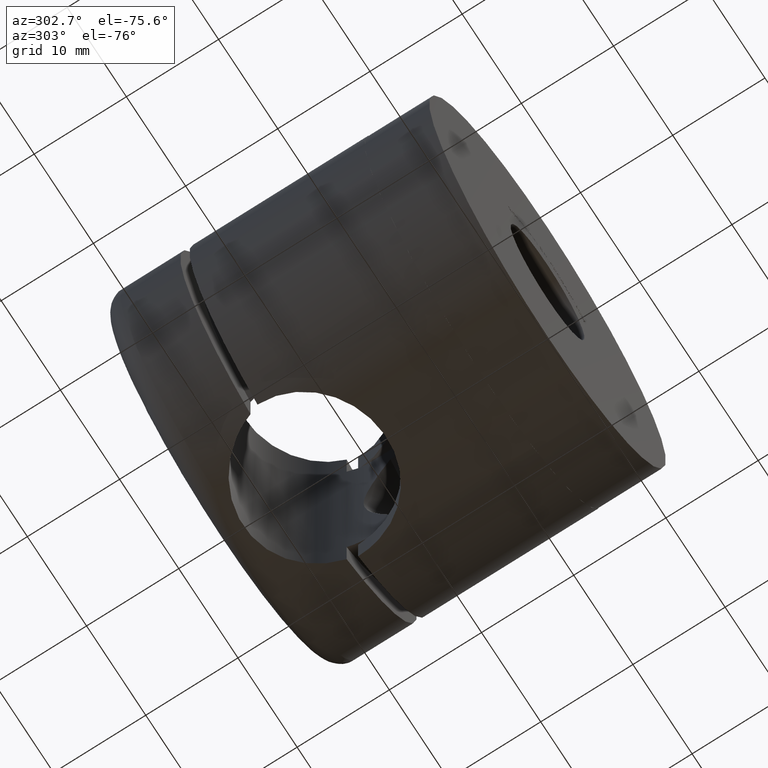
[diagram: clean part render]
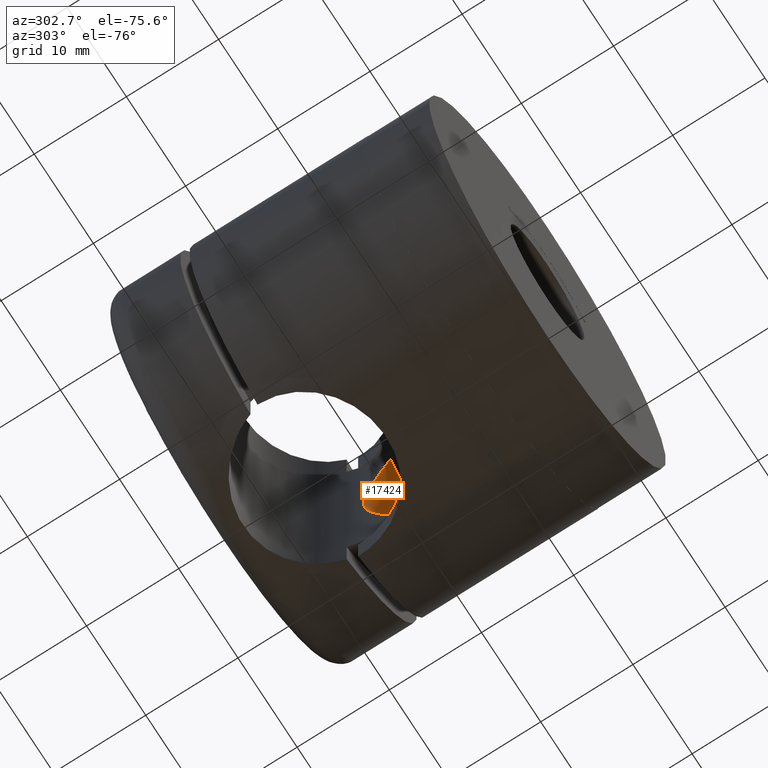
[diagram: same view with one face highlighted and labeled with its STEP entity id]
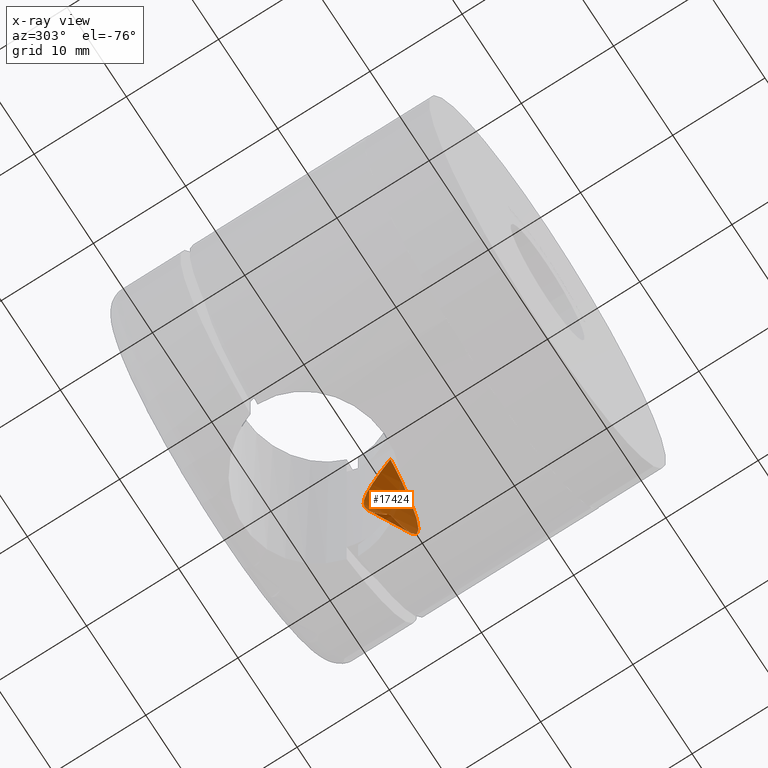
[diagram: x-ray of the same camera — body ghosted, the highlighted face saturated]
A machine part, auxiliary view. The second image highlights one B-rep face of the part: STEP entity #17424.
The next image is the same camera in x-ray: the body ghosted, the highlighted face saturated — about 40% of this face is hidden behind the body in this view.
In plain terms, the highlighted conical surface has half-angle 59 deg.
Its self-contained STEP definition (entity closure, byte-faithful):
#16 = CARTESIAN_POINT ( 'NONE',  ( 8.470316689241405700, 11.78591340343989600, -2.164372044070071800 ) ) ;
#83 = CARTESIAN_POINT ( 'NONE',  ( 8.488097470096475300, 12.02374899075188400, 3.455200897142647800 ) ) ;
#101 = CARTESIAN_POINT ( 'NONE',  ( 8.499999999999996400, 14.12247907873310600, -9.345232631488455500 ) ) ;
#277 = CARTESIAN_POINT ( 'NONE',  ( 8.499999999999994700, 13.75807566147998500, 8.514920876191522900 ) ) ;
#1086 = CARTESIAN_POINT ( 'NONE',  ( 8.464588809901300700, 11.72377538009827800, -1.733538298322939700 ) ) ;
#1113 = CONICAL_SURFACE ( 'NONE', #2738, 13.24999999999999600, 1.029744258676654100 ) ;
#1171 = EDGE_CURVE ( 'NONE', #7612, #2214, #10697, .T. ) ;
#1174 = CARTESIAN_POINT ( 'NONE',  ( 8.500000000000000000, 12.50000000000000400, 5.117127340306695700 ) ) ;
#1459 = CARTESIAN_POINT ( 'NONE',  ( 8.499999999999996400, 14.49999999999999800, 10.16427567512805800 ) ) ;
#1510 = CARTESIAN_POINT ( 'NONE',  ( 8.499999999999996400, 14.49999999999999800, -10.16427567512805800 ) ) ;
#1624 = ORIENTED_EDGE ( 'NONE', *, *, #1171, .F. ) ;
#2214 = VERTEX_POINT ( 'NONE', #3611 ) ;
#2667 = DIRECTION ( 'NONE',  ( 0.0000000000000000000, 0.0000000000000000000, 1.000000000000000000 ) ) ;
#2738 = AXIS2_PLACEMENT_3D ( 'NONE', #5350, #5181, #2667 ) ;
#2928 = CARTESIAN_POINT ( 'NONE',  ( 8.499999999999998200, 12.63448393242021700, -5.551082833214704400 ) ) ;
#2997 = CARTESIAN_POINT ( 'NONE',  ( 8.499999999999996400, 14.12144555125298400, 9.342990362397342700 ) ) ;
#3611 = CARTESIAN_POINT ( 'NONE',  ( 8.499999999999996400, 12.50000000000000000, -5.117127340306695700 ) ) ;
#3904 = EDGE_CURVE ( 'NONE', #2214, #14559, #12081, .T. ) ;
#3988 = CARTESIAN_POINT ( 'NONE',  ( 8.499999999999996400, 14.49999999999999800, 10.16427567512805800 ) ) ;
#4229 = CARTESIAN_POINT ( 'NONE',  ( 8.499999999999996400, 14.49999999999999800, -10.16427567512805800 ) ) ;
#4699 = FACE_OUTER_BOUND ( 'NONE', #16057, .T. ) ;
#5050 = AXIS2_PLACEMENT_3D ( 'NONE', #11974, #11570, #14665 ) ;
#5181 = DIRECTION ( 'NONE',  ( -0.0000000000000000000, 1.000000000000000000, -0.0000000000000000000 ) ) ;
#5350 = CARTESIAN_POINT ( 'NONE',  ( 0.0000000000000000000, 14.49999999999999800, 0.0000000000000000000 ) ) ;
#5722 = CARTESIAN_POINT ( 'NONE',  ( 8.499999999999996400, 12.78099535642304800, -5.983270184835440400 ) ) ;
#6764 = CARTESIAN_POINT ( 'NONE',  ( 8.487960100870724400, 12.02117721468206600, -3.445824744452385100 ) ) ;
#7198 = CARTESIAN_POINT ( 'NONE',  ( 8.454293803640945600, 11.61970569788817400, 0.8991242399111343300 ) ) ;
#7612 = VERTEX_POINT ( 'NONE', #1174 ) ;
#8150 = CARTESIAN_POINT ( 'NONE',  ( 8.500000000000000000, 12.24230391735391900, -4.285588370909843900 ) ) ;
#8271 = CARTESIAN_POINT ( 'NONE',  ( 8.464741415981043500, 11.71084447271580900, 1.760025772629055600 ) ) ;
#8358 = CARTESIAN_POINT ( 'NONE',  ( 8.499999999999998200, 13.25104646038842800, 7.255827513706979200 ) ) ;
#8572 = CARTESIAN_POINT ( 'NONE',  ( 8.454086431650425800, 11.61771713700351300, -0.4197338985671649800 ) ) ;
#9146 = CARTESIAN_POINT ( 'NONE',  ( 8.456446213060999600, 11.63958973340953100, -0.8627924087449113700 ) ) ;
#9264 = EDGE_CURVE ( 'NONE', #14988, #14559, #13873, .T. ) ;
#9612 = CARTESIAN_POINT ( 'NONE',  ( 8.499999999999996400, 12.50000000000000000, -5.117127340306695700 ) ) ;
#9707 = CARTESIAN_POINT ( 'NONE',  ( 8.499999999999998200, 12.78008696980463000, 5.980618887440311200 ) ) ;
#9738 = EDGE_CURVE ( 'NONE', #14988, #7612, #10896, .T. ) ;
#9755 = CARTESIAN_POINT ( 'NONE',  ( 8.499999999999994700, 13.25266821709258000, -7.259975275631322100 ) ) ;
#10697 = B_SPLINE_CURVE_WITH_KNOTS ( 'NONE', 3,
 ( #13496, #16172, #83, #8271, #7198, #8572, #9146, #1086, #16, #6764, #8150, #9612 ),
 .UNSPECIFIED., .F., .F.,
 ( 4, 2, 2, 2, 2, 4 ),
 ( 0.001838161783039397300, 0.004423539086428568900, 0.007008916389817741000, 0.008301605041512326700, 0.009594293693206912300, 0.01217967099659608400 ),
 .UNSPECIFIED. ) ;
#10887 = CARTESIAN_POINT ( 'NONE',  ( 8.499999999999994700, 13.08993967665498400, -6.837207692067382300 ) ) ;
#10896 = B_SPLINE_CURVE_WITH_KNOTS ( 'NONE', 3,
 ( #1459, #2997, #277, #8358, #15050, #9707, #12406, #16367 ),
 .UNSPECIFIED., .F., .F.,
 ( 4, 2, 2, 4 ),
 ( 0.02165056341035569200, 0.02436636304985750900, 0.02572426286960842100, 0.02708216268935933000 ),
 .UNSPECIFIED. ) ;
#11570 = DIRECTION ( 'NONE',  ( -0.0000000000000000000, 1.000000000000000000, -0.0000000000000000000 ) ) ;
#11781 = ORIENTED_EDGE ( 'NONE', *, *, #9264, .T. ) ;
#11974 = CARTESIAN_POINT ( 'NONE',  ( 0.0000000000000000000, 14.49999999999999800, 0.0000000000000000000 ) ) ;
#12081 = B_SPLINE_CURVE_WITH_KNOTS ( 'NONE', 3,
 ( #16413, #2928, #5722, #10887, #9755, #12225, #101, #1510 ),
 .UNSPECIFIED., .F., .F.,
 ( 4, 2, 2, 4 ),
 ( 0.03752504382983925400, 0.03888710533098283700, 0.04024916683212641900, 0.04297328983441357800 ),
 .UNSPECIFIED. ) ;
#12225 = CARTESIAN_POINT ( 'NONE',  ( 8.499999999999998200, 13.75969215610601300, -8.518692351599943500 ) ) ;
#12406 = CARTESIAN_POINT ( 'NONE',  ( 8.499999999999996400, 12.63407455167395500, 5.549761835082572100 ) ) ;
#13496 = CARTESIAN_POINT ( 'NONE',  ( 8.500000000000000000, 12.50000000000000400, 5.117127340306695700 ) ) ;
#13873 = CIRCLE ( 'NONE', #5050, 13.24999999999999600 ) ;
#14341 = ORIENTED_EDGE ( 'NONE', *, *, #3904, .F. ) ;
#14559 = VERTEX_POINT ( 'NONE', #4229 ) ;
#14665 = DIRECTION ( 'NONE',  ( 0.0000000000000000000, 0.0000000000000000000, 1.000000000000000000 ) ) ;
#14988 = VERTEX_POINT ( 'NONE', #3988 ) ;
#15050 = CARTESIAN_POINT ( 'NONE',  ( 8.499999999999996400, 13.08846085609362400, 6.833259546816939300 ) ) ;
#16057 = EDGE_LOOP ( 'NONE', ( #11781, #14341, #1624, #16888 ) ) ;
#16172 = CARTESIAN_POINT ( 'NONE',  ( 8.500000000000000000, 12.24362841440784100, 4.289862284986779400 ) ) ;
#16367 = CARTESIAN_POINT ( 'NONE',  ( 8.500000000000000000, 12.50000000000000400, 5.117127340306695700 ) ) ;
#16413 = CARTESIAN_POINT ( 'NONE',  ( 8.499999999999996400, 12.50000000000000000, -5.117127340306695700 ) ) ;
#16888 = ORIENTED_EDGE ( 'NONE', *, *, #9738, .F. ) ;
#17424 = ADVANCED_FACE ( 'NONE', ( #4699 ), #1113, .F. ) ;